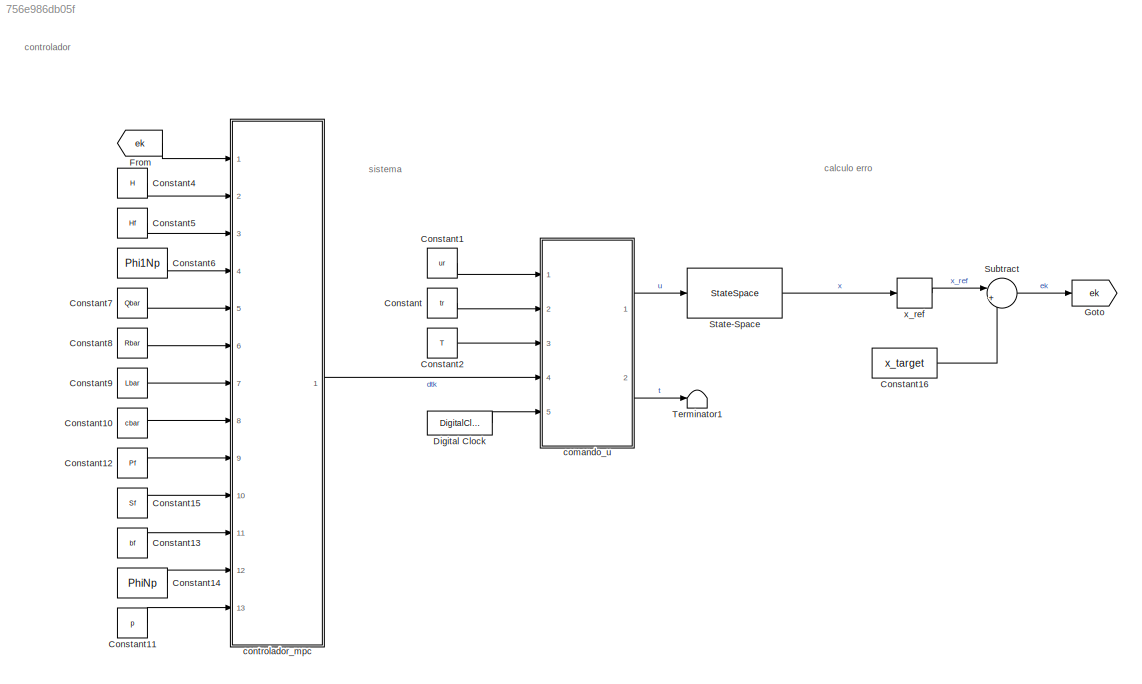
MODEL slx_756e986db05f
KIND model
CONFIG AbsTol = auto
CONFIG EnableMultiTasking = off
CONFIG FixedStep = dt_sim
CONFIG MaxStep = auto
CONFIG MinStep = auto
CONFIG RelTol = 1e-3
CONFIG SampleTimeConstraint = Unconstrained
CONFIG Solver = FixedStepAuto
CONFIG SolverName = FixedStepAuto
CONFIG StartTime = 0.0
CONFIG StopTime = t_fim
BLOCK [Constant] Constant
  Value = tr
BLOCK [Constant] Constant1
  Value = ur
BLOCK [Constant] Constant10
  Value = cbar
BLOCK [Constant] Constant11
  Value = p
BLOCK [Constant] Constant12
  Value = Pf
BLOCK [Constant] Constant13
  Value = bf
BLOCK [Constant] Constant14
  Value = PhiNp
BLOCK [Constant] Constant15
  Value = Sf
BLOCK [Constant] Constant16
  Value = x_target
BLOCK [Constant] Constant2
  Value = T
BLOCK [Constant] Constant4
  Value = H
BLOCK [Constant] Constant5
  Value = Hf
BLOCK [Constant] Constant6
  Value = Phi1Np
BLOCK [Constant] Constant7
  Value = Qbar
BLOCK [Constant] Constant8
  Value = Rbar
BLOCK [Constant] Constant9
  Value = Lbar
BLOCK [DigitalClock] Digital Clock
  SampleTime = dt_sim
BLOCK [From] From
  GotoTag = ek
BLOCK [Goto] Goto
  GotoTag = ek
BLOCK [StateSpace] State-Space
  A = Ac
  B = Bc
  C = eye(2)
  D = [0;0]
  InitialCondition = x0
  Ports = [1, 1]
BLOCK [Sum] Subtract
  Inputs = |+-
  Ports = [2, 1]
BLOCK [Terminator] Terminator1
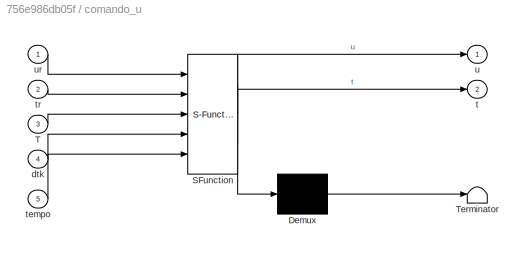
BLOCK [SubSystem] comando_u
  ErrorFcn = Stateflow.Translate.translate
  PermitHierarchicalResolution = ExplicitOnly
  Ports = [5, 2]
  RequestExecContextInheritance = off
  SFBlockType = MATLAB Function
  TreatAsAtomicUnit = on
BLOCK [Demux] comando_u/ Demux 
  Outputs = 1
  Ports = [1, 1]
BLOCK [S-Function] comando_u/ SFunction 
  EnableBusSupport = on
  FunctionName = sf_sfun
  PortCounts = [5 3]
  Ports = [5, 3]
  SFcnIsStateOwnerBlock = off
  SFunctionDeploymentMode = off
  Tag = Stateflow S-Function 2
BLOCK [Terminator] comando_u/ Terminator 
BLOCK [Inport] comando_u/T
  Port = 3
BLOCK [Inport] comando_u/dtk
  Port = 4
BLOCK [Outport] comando_u/t
  Port = 2
BLOCK [Inport] comando_u/tempo
  Port = 5
BLOCK [Inport] comando_u/tr
  Port = 2
BLOCK [Outport] comando_u/u
BLOCK [Inport] comando_u/ur
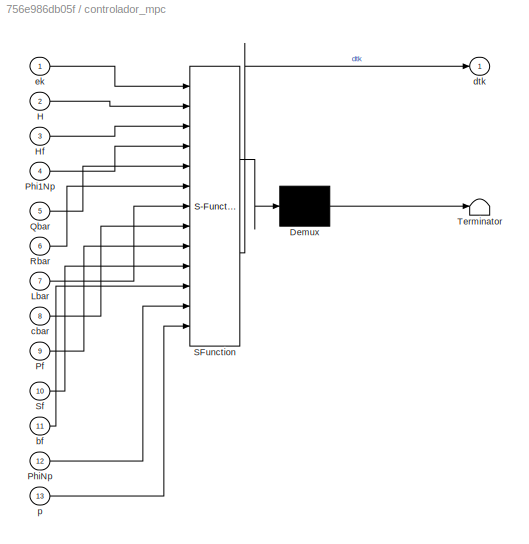
BLOCK [SubSystem] controlador_mpc
  ErrorFcn = Stateflow.Translate.translate
  PermitHierarchicalResolution = ExplicitOnly
  Ports = [13, 1]
  RequestExecContextInheritance = off
  SFBlockType = MATLAB Function
  TreatAsAtomicUnit = on
BLOCK [Demux] controlador_mpc/ Demux 
  Outputs = 1
  Ports = [1, 1]
BLOCK [S-Function] controlador_mpc/ SFunction 
  EnableBusSupport = on
  FunctionName = sf_sfun
  PortCounts = [13 2]
  Ports = [13, 2]
  SFcnIsStateOwnerBlock = off
  SFunctionDeploymentMode = off
  Tag = Stateflow S-Function 1
BLOCK [Terminator] controlador_mpc/ Terminator 
BLOCK [Inport] controlador_mpc/H
  Port = 2
BLOCK [Inport] controlador_mpc/Hf
  Port = 3
BLOCK [Inport] controlador_mpc/Lbar
  Port = 7
BLOCK [Inport] controlador_mpc/Pf
  Port = 9
BLOCK [Inport] controlador_mpc/Phi1Np
  Port = 4
BLOCK [Inport] controlador_mpc/PhiNp
  Port = 12
BLOCK [Inport] controlador_mpc/Qbar
  Port = 5
BLOCK [Inport] controlador_mpc/Rbar
  Port = 6
BLOCK [Inport] controlador_mpc/Sf
  Port = 10
BLOCK [Inport] controlador_mpc/bf
  Port = 11
BLOCK [Inport] controlador_mpc/cbar
  Port = 8
BLOCK [Outport] controlador_mpc/dtk
BLOCK [Inport] controlador_mpc/ek
BLOCK [Inport] controlador_mpc/p
  Port = 13
BLOCK [ZeroOrderHold] x_ref
  SampleTime = T
ANNOTATION (root): calculo erro
ANNOTATION (root): controlador
ANNOTATION (root): sistema
LINE Constant10:1 -> controlador_mpc:8
LINE Constant11:1 -> controlador_mpc:13
LINE Constant12:1 -> controlador_mpc:9
LINE Constant13:1 -> controlador_mpc:11
LINE Constant14:1 -> controlador_mpc:12
LINE Constant15:1 -> controlador_mpc:10
LINE Constant16:1 -> Subtract:2
LINE Constant1:1 -> comando_u:1
LINE Constant2:1 -> comando_u:3
LINE Constant4:1 -> controlador_mpc:2
LINE Constant5:1 -> controlador_mpc:3
LINE Constant6:1 -> controlador_mpc:4
LINE Constant7:1 -> controlador_mpc:5
LINE Constant8:1 -> controlador_mpc:6
LINE Constant9:1 -> controlador_mpc:7
LINE Constant:1 -> comando_u:2
LINE Digital Clock:1 -> comando_u:5
LINE From:1 -> controlador_mpc:1
LINE State-Space:1 -> x_ref:1
LINE Subtract:1 -> Goto:1
LINE comando_u:1 -> State-Space:1
LINE comando_u:2 -> Terminator1:1
LINE controlador_mpc:1 -> comando_u:4
LINE x_ref:1 -> Subtract:1
CHART controlador_mpc states=1 transitions=1
  STATE_LABEL 'eML_blk_kernel()'
  STATE_LABEL 'SCRIPT:\nfunction dtk = fcn(ek,H,Hf,Phi1Np,Qbar,Rbar,Lbar,cbar,Pf,Sf,bf,PhiNp,p)\n    \n    dtk_ = mpc.mpc_dualmode_switching(ek,H,Hf,Phi1Np,Qbar,Rbar,Lbar,cbar,Pf,Sf,bf,PhiNp,p);\n    dtk  = dtk_(1:3);'
CHART comando_u states=1 transitions=1
  STATE_LABEL 'eML_blk_kernel()'
  STATE_LABEL 'SCRIPT:\nfunction [u,t] = fcn(ur, tr, T, dtk, tempo)\n    \n    [u,t] = fn_comando_u(ur, tr, T, dtk, tempo);'
CHART  states=0 transitions=0
CHART  states=0 transitions=0
